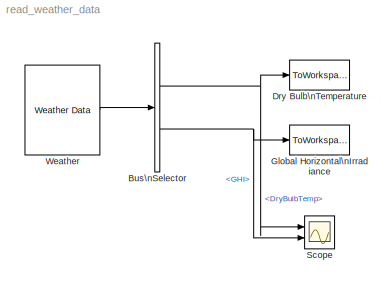
MODEL read_weather_data
KIND model
BLOCK [BusSelector] Bus\nSelector
  OutputSignals = DryBulbTemp,GHI
  Ports = [1, 2]
  SID = 21
BLOCK [ToWorkspace] Dry Bulb\nTemperature
  MaxDataPoints = inf
  Ports = [1]
  SID = 42
  SampleTime = -1
  SaveFormat = Timeseries
  VariableName = dryBulb
BLOCK [ToWorkspace] Global Horizontal\nIrradiance
  MaxDataPoints = inf
  Ports = [1]
  SID = 43
  SampleTime = -1
  SaveFormat = Timeseries
  VariableName = ghi
BLOCK [Scope] Scope
  DataFormat = StructureWithTime
  Floating = off
  LegendLocations = 0.49177     0.88344     0.41358    0.041581\n0.63066     0.43149     0.27469    0.041581
  LimitDataPoints = off
  NumInputPorts = 2
  Ports = [2]
  SID = 44
  SampleTime = 0
  ShowLegends = on
  YMax = 5~5
  YMin = -5~-5
BLOCK [Reference] Weather  REF=CampusEnergyModeling/Weather/Weather Data
  Ports = [0, 1]
  SID = 41
  SourceBlock = CampusEnergyModeling/Weather/Weather Data
  SourceType = Weather Data From File
  fname = weatherData.mat
  initbus = on
NET Bus\nSelector:1 -> Dry Bulb\nTemperature:1, Scope:1
NET Bus\nSelector:2 -> Global Horizontal\nIrradiance:1, Scope:2
LINE Weather:1 -> Bus\nSelector:1
note: NET lines group one-source signal fan-out (src -> all destinations, sorted); 1:1 wires keep LINE
